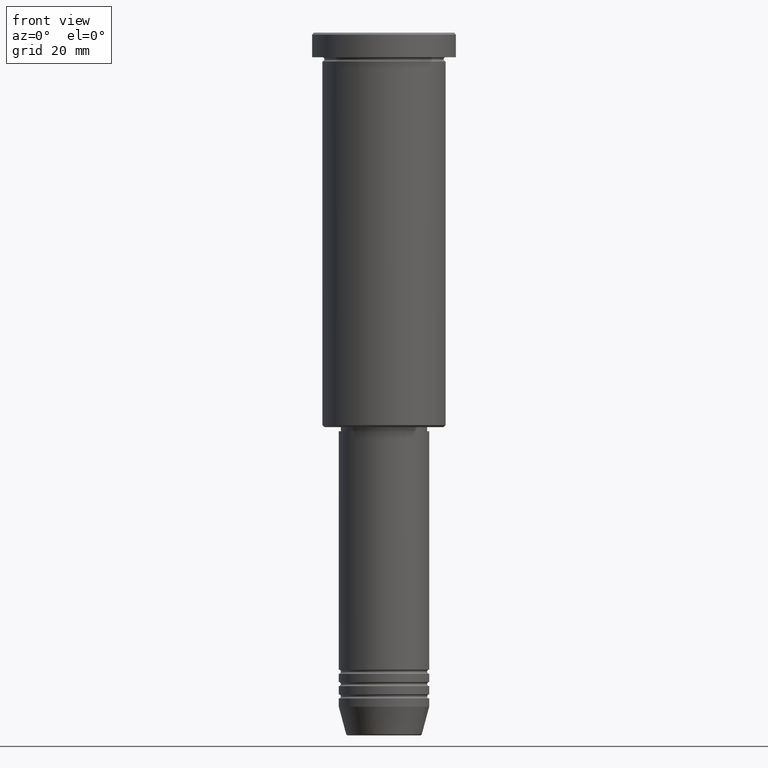
[diagram: clean part render]
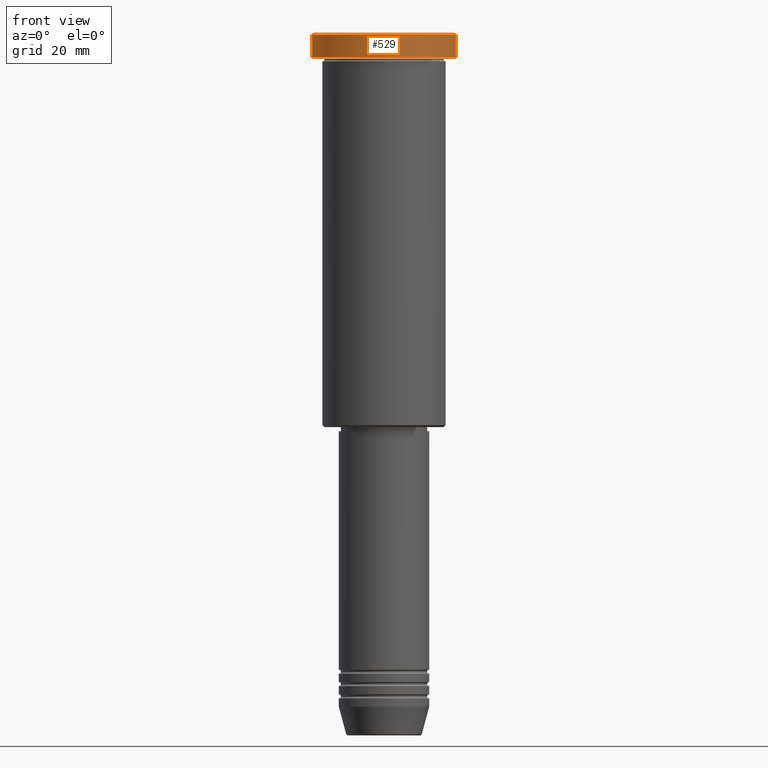
[diagram: same view with one face highlighted and labeled with its STEP entity id]
A machine part, front view. The second image highlights one B-rep face of the part: STEP entity #529.
In plain terms, the highlighted cylindrical surface (partial cylindrical patch) has radius 17.5 mm, axis along (-0, -0, 1).
Its self-contained STEP definition (entity closure, byte-faithful):
#84 = AXIS2_PLACEMENT_3D ( 'NONE', #797, #1058, #977 ) ;
#144 = CARTESIAN_POINT ( 'NONE',  ( -17.50000000000000000, 2.143131898507868248E-15, 0.000000000000000000 ) ) ;
#181 = AXIS2_PLACEMENT_3D ( 'NONE', #1020, #466, #554 ) ;
#205 = CARTESIAN_POINT ( 'NONE',  ( 17.50000000000000000, 0.000000000000000000, 0.000000000000000000 ) ) ;
#268 = CARTESIAN_POINT ( 'NONE',  ( -17.50000000000000000, 2.143131898507868248E-15, -5.999999999999995559 ) ) ;
#270 = DIRECTION ( 'NONE',  ( -0.000000000000000000, -0.000000000000000000, 1.000000000000000000 ) ) ;
#294 = LINE ( 'NONE', #205, #1049 ) ;
#308 = VERTEX_POINT ( 'NONE', #779 ) ;
#399 = CIRCLE ( 'NONE', #181, 17.50000000000000000 ) ;
#417 = FACE_OUTER_BOUND ( 'NONE', #436, .T. ) ;
#425 = CYLINDRICAL_SURFACE ( 'NONE', #84, 17.50000000000000000 ) ;
#434 = VERTEX_POINT ( 'NONE', #710 ) ;
#436 = EDGE_LOOP ( 'NONE', ( #483, #1148, #975, #459 ) ) ;
#459 = ORIENTED_EDGE ( 'NONE', *, *, #1145, .T. ) ;
#466 = DIRECTION ( 'NONE',  ( -0.000000000000000000, -0.000000000000000000, 1.000000000000000000 ) ) ;
#483 = ORIENTED_EDGE ( 'NONE', *, *, #909, .F. ) ;
#500 = DIRECTION ( 'NONE',  ( 1.000000000000000000, 0.000000000000000000, 0.000000000000000000 ) ) ;
#529 = ADVANCED_FACE ( 'NONE', ( #417 ), #425, .T. ) ;
#554 = DIRECTION ( 'NONE',  ( 1.000000000000000000, 0.000000000000000000, 0.000000000000000000 ) ) ;
#621 = LINE ( 'NONE', #144, #826 ) ;
#643 = VERTEX_POINT ( 'NONE', #268 ) ;
#655 = CARTESIAN_POINT ( 'NONE',  ( -17.50000000000000000, 2.143131898507868248E-15, -0.4999999999999727995 ) ) ;
#689 = DIRECTION ( 'NONE',  ( 0.000000000000000000, 0.000000000000000000, -1.000000000000000000 ) ) ;
#695 = CARTESIAN_POINT ( 'NONE',  ( 0.000000000000000000, 0.000000000000000000, -0.4999999999999727995 ) ) ;
#710 = CARTESIAN_POINT ( 'NONE',  ( 17.50000000000000000, 0.000000000000000000, -0.4999999999999727995 ) ) ;
#732 = DIRECTION ( 'NONE',  ( -0.000000000000000000, -0.000000000000000000, 1.000000000000000000 ) ) ;
#779 = CARTESIAN_POINT ( 'NONE',  ( 17.50000000000000000, 0.000000000000000000, -5.999999999999995559 ) ) ;
#797 = CARTESIAN_POINT ( 'NONE',  ( 0.000000000000000000, 0.000000000000000000, 0.000000000000000000 ) ) ;
#826 = VECTOR ( 'NONE', #732, 1000.000000000000000 ) ;
#909 = EDGE_CURVE ( 'NONE', #643, #1072, #621, .T. ) ;
#940 = CIRCLE ( 'NONE', #1031, 17.50000000000000000 ) ;
#975 = ORIENTED_EDGE ( 'NONE', *, *, #999, .T. ) ;
#977 = DIRECTION ( 'NONE',  ( 1.000000000000000000, 0.000000000000000000, 0.000000000000000000 ) ) ;
#999 = EDGE_CURVE ( 'NONE', #308, #434, #294, .T. ) ;
#1020 = CARTESIAN_POINT ( 'NONE',  ( 0.000000000000000000, 0.000000000000000000, -5.999999999999995559 ) ) ;
#1031 = AXIS2_PLACEMENT_3D ( 'NONE', #695, #689, #500 ) ;
#1037 = EDGE_CURVE ( 'NONE', #643, #308, #399, .T. ) ;
#1049 = VECTOR ( 'NONE', #270, 1000.000000000000000 ) ;
#1058 = DIRECTION ( 'NONE',  ( -0.000000000000000000, -0.000000000000000000, 1.000000000000000000 ) ) ;
#1072 = VERTEX_POINT ( 'NONE', #655 ) ;
#1145 = EDGE_CURVE ( 'NONE', #434, #1072, #940, .T. ) ;
#1148 = ORIENTED_EDGE ( 'NONE', *, *, #1037, .T. ) ;